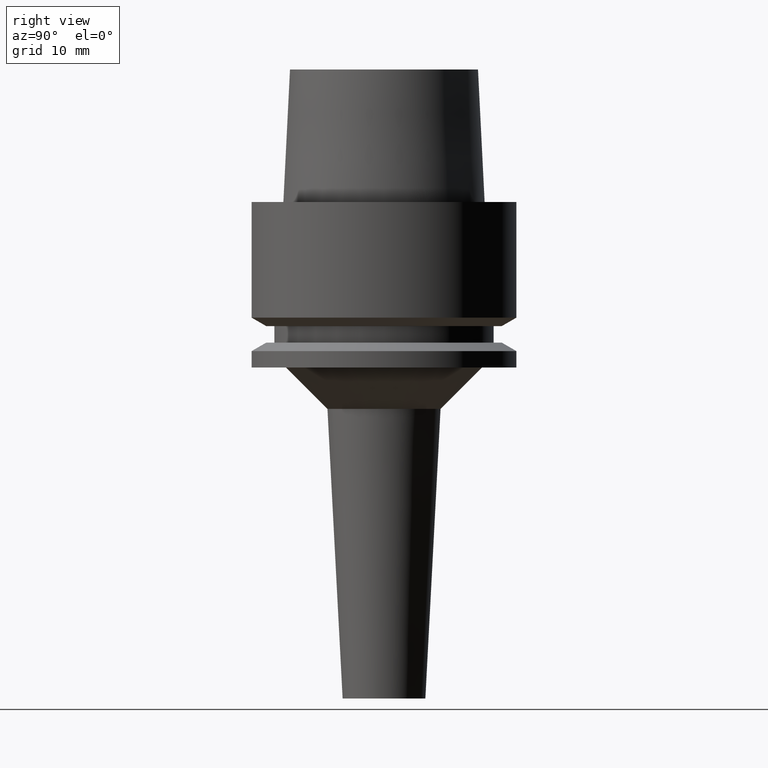
[diagram: clean part render]
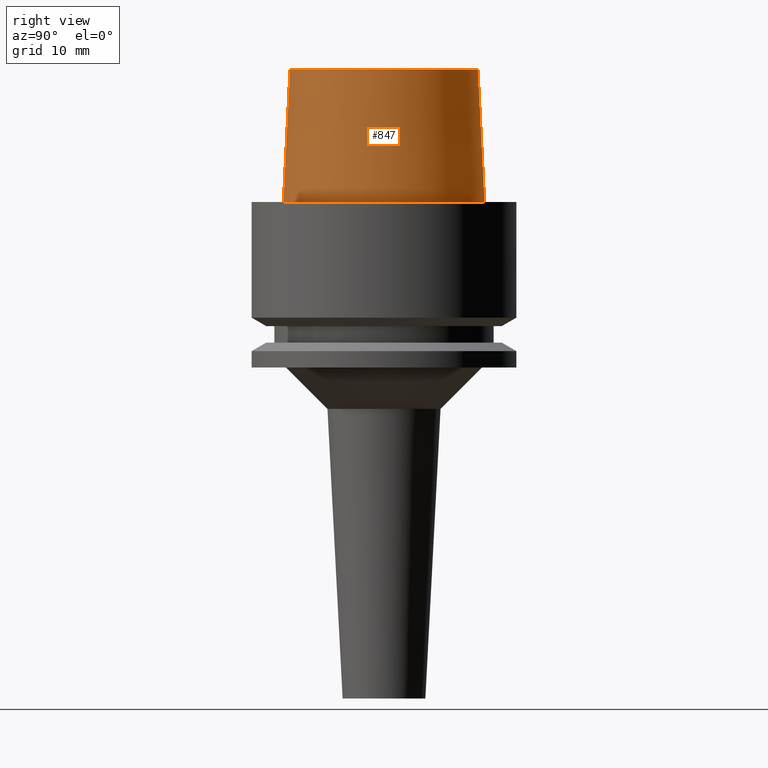
[diagram: same view with one face highlighted and labeled with its STEP entity id]
A machine part, right view. The second image highlights one B-rep face of the part: STEP entity #847.
In plain terms, the highlighted conical surface has half-angle 2.862 deg.
Its self-contained STEP definition (entity closure, byte-faithful):
#17=DIRECTION('',(0.E0,4.993752584493E-2,-9.987523434328E-1));
#18=VECTOR('',#17,1.601998744254E1);
#19=CARTESIAN_POINT('',(0.E0,1.136000117044E1,1.6E1));
#20=LINE('',#19,#18);
#25=DIRECTION('',(0.E0,-4.993752584493E-2,-9.987523434328E-1));
#26=VECTOR('',#25,1.601998744254E1);
#27=CARTESIAN_POINT('',(0.E0,-1.136000117044E1,1.6E1));
#28=LINE('',#27,#26);
#40=CARTESIAN_POINT('',(0.E0,1.322618543079E-14,1.6E1));
#41=DIRECTION('',(0.E0,0.E0,-1.E0));
#42=DIRECTION('',(0.E0,1.E0,0.E0));
#43=AXIS2_PLACEMENT_3D('',#40,#41,#42);
#704=CARTESIAN_POINT('',(0.E0,1.322618543079E-14,1.989519660128E-13));
#705=DIRECTION('',(0.E0,0.E0,1.E0));
#706=DIRECTION('',(0.E0,-1.E0,0.E0));
#707=AXIS2_PLACEMENT_3D('',#704,#705,#706);
#720=CARTESIAN_POINT('',(0.E0,1.136000117044E1,1.6E1));
#721=CARTESIAN_POINT('',(0.E0,1.215999970739E1,1.314504061156E-13));
#722=VERTEX_POINT('',#720);
#723=VERTEX_POINT('',#721);
#724=CARTESIAN_POINT('',(0.E0,-1.215999970739E1,1.989519660128E-13));
#725=VERTEX_POINT('',#724);
#726=CARTESIAN_POINT('',(0.E0,-1.136000117044E1,1.6E1));
#727=VERTEX_POINT('',#726);
#832=CARTESIAN_POINT('',(0.E0,1.322618543079E-14,8.E0));
#833=DIRECTION('',(0.E0,0.E0,-1.E0));
#834=DIRECTION('',(0.E0,-1.E0,0.E0));
#835=AXIS2_PLACEMENT_3D('',#832,#833,#834);
#836=CONICAL_SURFACE('',#835,1.176000043892E1,2.8624E0);
#838=ORIENTED_EDGE('',*,*,#837,.T.);
#840=ORIENTED_EDGE('',*,*,#839,.F.);
#842=ORIENTED_EDGE('',*,*,#841,.F.);
#844=ORIENTED_EDGE('',*,*,#843,.F.);
#845=EDGE_LOOP('',(#838,#840,#842,#844));
#846=FACE_OUTER_BOUND('',#845,.F.);
#44=CIRCLE('',#43,1.136000117045E1);
#708=CIRCLE('',#707,1.215999970739E1);
#837=EDGE_CURVE('',#722,#723,#20,.T.);
#839=EDGE_CURVE('',#725,#723,#708,.T.);
#841=EDGE_CURVE('',#727,#725,#28,.T.);
#843=EDGE_CURVE('',#722,#727,#44,.T.);
#847=ADVANCED_FACE('',(#846),#836,.T.);